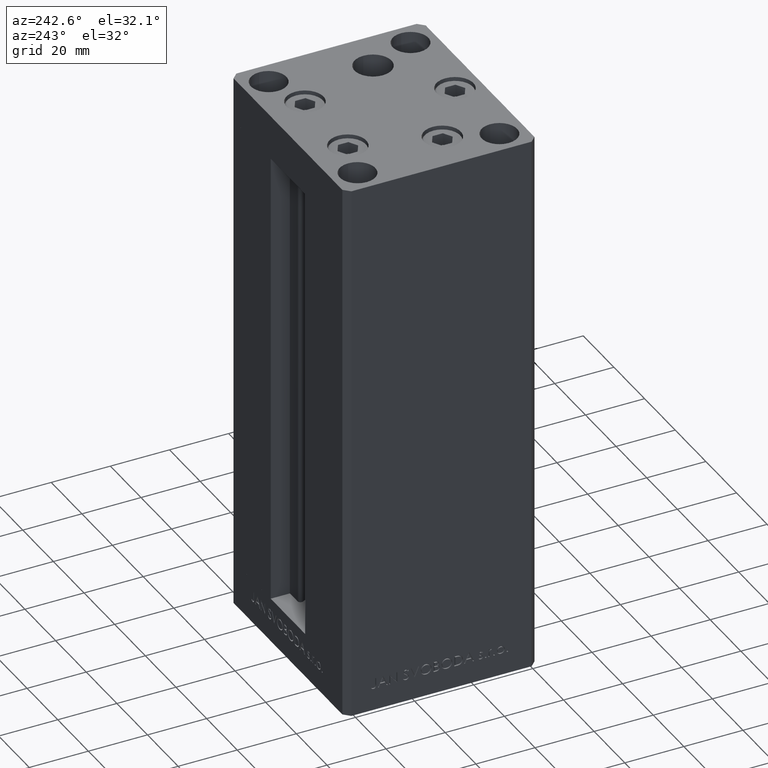
[diagram: clean part render]
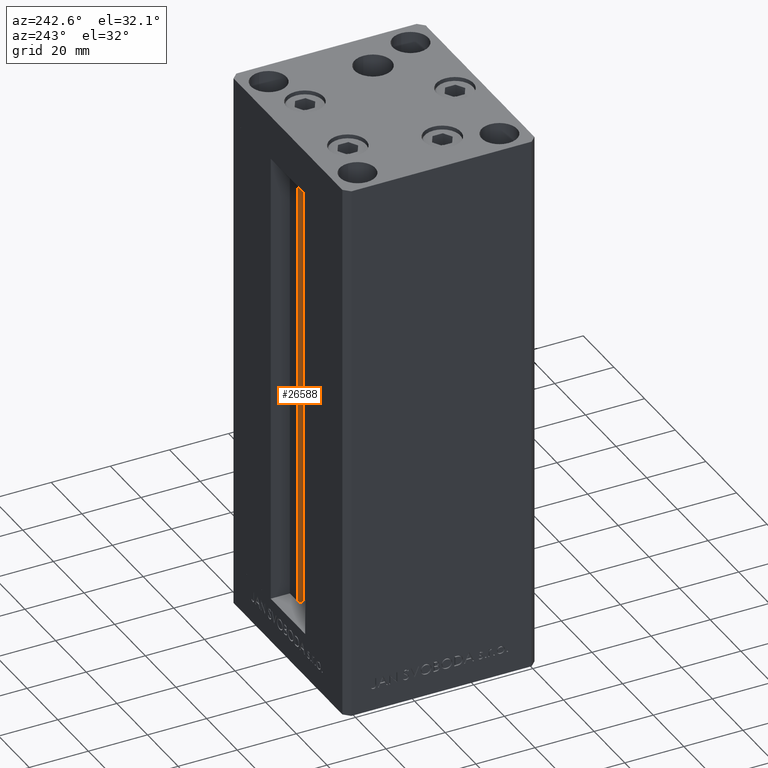
[diagram: same view with one face highlighted and labeled with its STEP entity id]
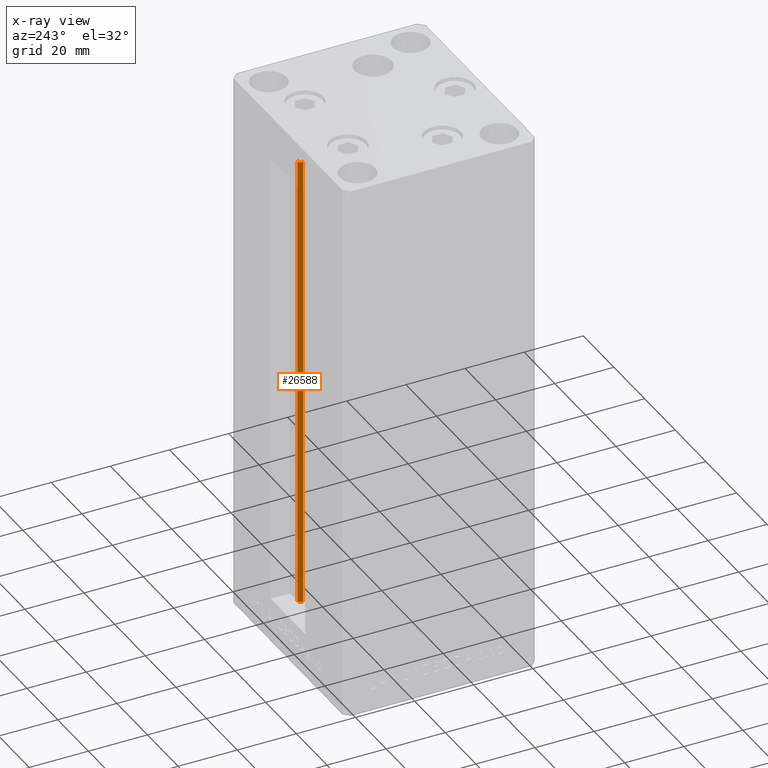
[diagram: x-ray of the same camera — body ghosted, the highlighted face saturated]
A machine part, auxiliary view. The second image highlights one B-rep face of the part: STEP entity #26588.
The next image is the same camera in x-ray: the body ghosted, the highlighted face saturated — about 0% of this face is hidden behind the body in this view.
In plain terms, the highlighted cylindrical surface (edge-blend (fillet) strip) has radius 0.9333 mm, axis along (0, 0, 1).
Its self-contained STEP definition (entity closure, byte-faithful):
#1401 = VERTEX_POINT ( 'NONE', #3180 ) ;
#1645 = VERTEX_POINT ( 'NONE', #15222 ) ;
#3180 = CARTESIAN_POINT ( 'NONE',  ( 6.183333333334001480, 25.99999999999999289, 0.000000000000000000 ) ) ;
#3266 = EDGE_CURVE ( 'NONE', #1645, #27889, #28297, .T. ) ;
#4159 = ORIENTED_EDGE ( 'NONE', *, *, #8696, .T. ) ;
#4177 = DIRECTION ( 'NONE',  ( -0.000000000000000000, -0.000000000000000000, 1.000000000000000000 ) ) ;
#5146 = CYLINDRICAL_SURFACE ( 'NONE', #14370, 0.9333333333340008142 ) ;
#6785 = ORIENTED_EDGE ( 'NONE', *, *, #43153, .F. ) ;
#8696 = EDGE_CURVE ( 'NONE', #40535, #1645, #16336, .T. ) ;
#8855 = DIRECTION ( 'NONE',  ( -0.000000000000000000, -0.000000000000000000, 1.000000000000000000 ) ) ;
#10488 = VECTOR ( 'NONE', #4177, 1000.000000000000000 ) ;
#10708 = EDGE_LOOP ( 'NONE', ( #44818, #6785, #4159, #25476 ) ) ;
#11060 = AXIS2_PLACEMENT_3D ( 'NONE', #37418, #37173, #41612 ) ;
#12422 = VECTOR ( 'NONE', #28457, 1000.000000000000000 ) ;
#12504 = AXIS2_PLACEMENT_3D ( 'NONE', #33592, #26163, #33354 ) ;
#14370 = AXIS2_PLACEMENT_3D ( 'NONE', #24417, #8855, #36310 ) ;
#15222 = CARTESIAN_POINT ( 'NONE',  ( 5.375042956467948052, 24.59999999999899245, 156.0000000000000000 ) ) ;
#16336 = LINE ( 'NONE', #35892, #12422 ) ;
#16760 = CARTESIAN_POINT ( 'NONE',  ( 5.375042956467947164, 24.59999999999899245, 0.000000000000000000 ) ) ;
#19745 = CIRCLE ( 'NONE', #11060, 0.9333333333340008142 ) ;
#20715 = FACE_OUTER_BOUND ( 'NONE', #10708, .T. ) ;
#24417 = CARTESIAN_POINT ( 'NONE',  ( 6.183333333334001480, 25.06666666666599141, 0.000000000000000000 ) ) ;
#25476 = ORIENTED_EDGE ( 'NONE', *, *, #3266, .T. ) ;
#26163 = DIRECTION ( 'NONE',  ( 0.000000000000000000, 0.000000000000000000, -1.000000000000000000 ) ) ;
#26588 = ADVANCED_FACE ( 'NONE', ( #20715 ), #5146, .T. ) ;
#27396 = CARTESIAN_POINT ( 'NONE',  ( 6.183333333334001480, 25.99999999999999289, 0.000000000000000000 ) ) ;
#27889 = VERTEX_POINT ( 'NONE', #44639 ) ;
#28297 = CIRCLE ( 'NONE', #12504, 0.9333333333340008142 ) ;
#28457 = DIRECTION ( 'NONE',  ( -0.000000000000000000, -0.000000000000000000, 1.000000000000000000 ) ) ;
#29521 = EDGE_CURVE ( 'NONE', #1401, #27889, #31366, .T. ) ;
#31366 = LINE ( 'NONE', #27396, #10488 ) ;
#33354 = DIRECTION ( 'NONE',  ( 1.000000000000000000, 0.000000000000000000, 0.000000000000000000 ) ) ;
#33592 = CARTESIAN_POINT ( 'NONE',  ( 6.183333333334001480, 25.06666666666599141, 156.0000000000000000 ) ) ;
#35892 = CARTESIAN_POINT ( 'NONE',  ( 5.375042956467947164, 24.59999999999899245, 0.000000000000000000 ) ) ;
#36310 = DIRECTION ( 'NONE',  ( 1.000000000000000000, 0.000000000000000000, 0.000000000000000000 ) ) ;
#37173 = DIRECTION ( 'NONE',  ( -0.000000000000000000, -0.000000000000000000, -1.000000000000000000 ) ) ;
#37418 = CARTESIAN_POINT ( 'NONE',  ( 6.183333333334001480, 25.06666666666599141, 0.000000000000000000 ) ) ;
#40535 = VERTEX_POINT ( 'NONE', #16760 ) ;
#41612 = DIRECTION ( 'NONE',  ( 1.000000000000000000, 0.000000000000000000, 0.000000000000000000 ) ) ;
#43153 = EDGE_CURVE ( 'NONE', #40535, #1401, #19745, .T. ) ;
#44639 = CARTESIAN_POINT ( 'NONE',  ( 6.183333333334001480, 25.99999999999999289, 156.0000000000000000 ) ) ;
#44818 = ORIENTED_EDGE ( 'NONE', *, *, #29521, .F. ) ;